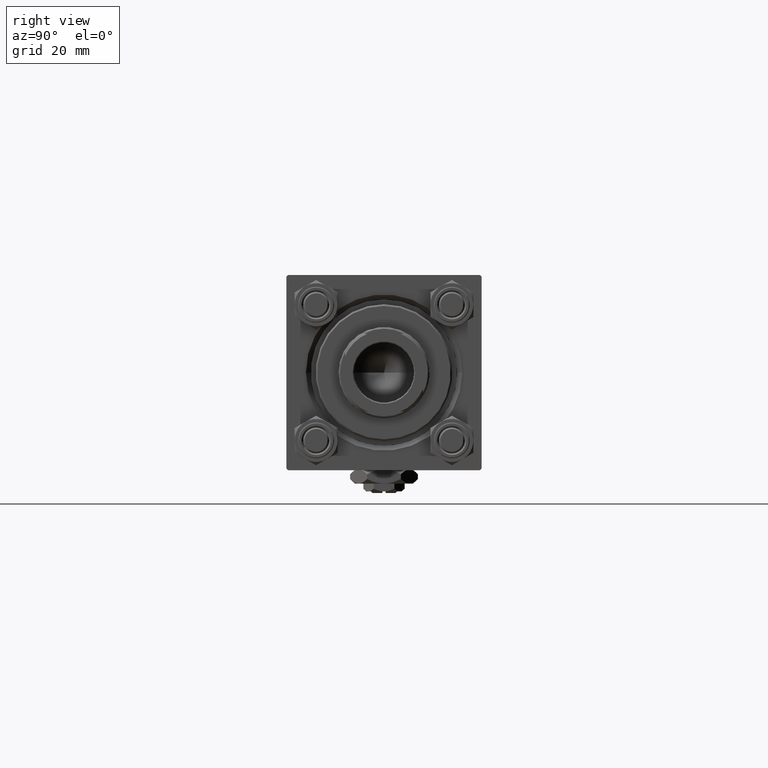
[diagram: clean part render]
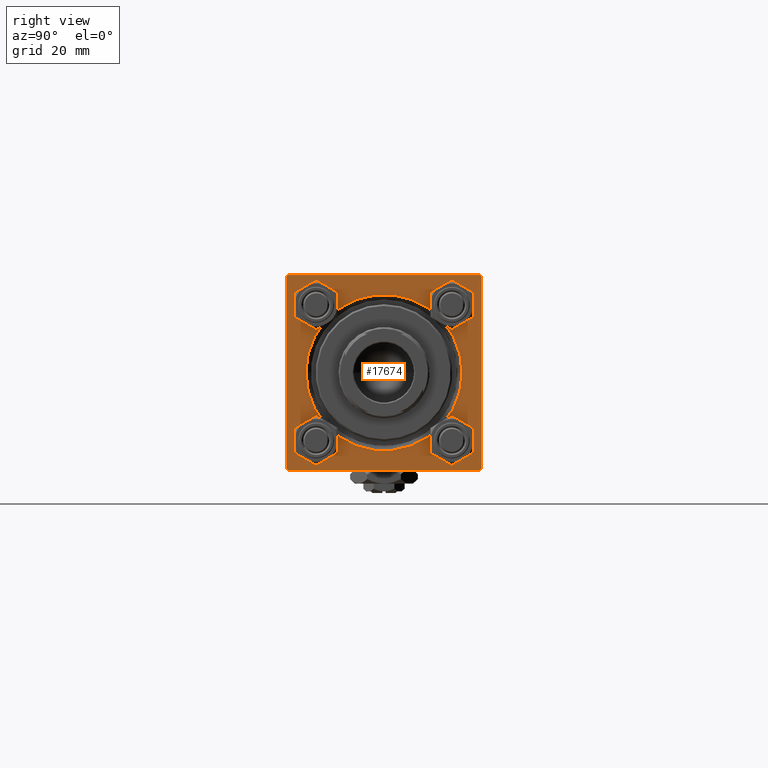
[diagram: same view with one face highlighted and labeled with its STEP entity id]
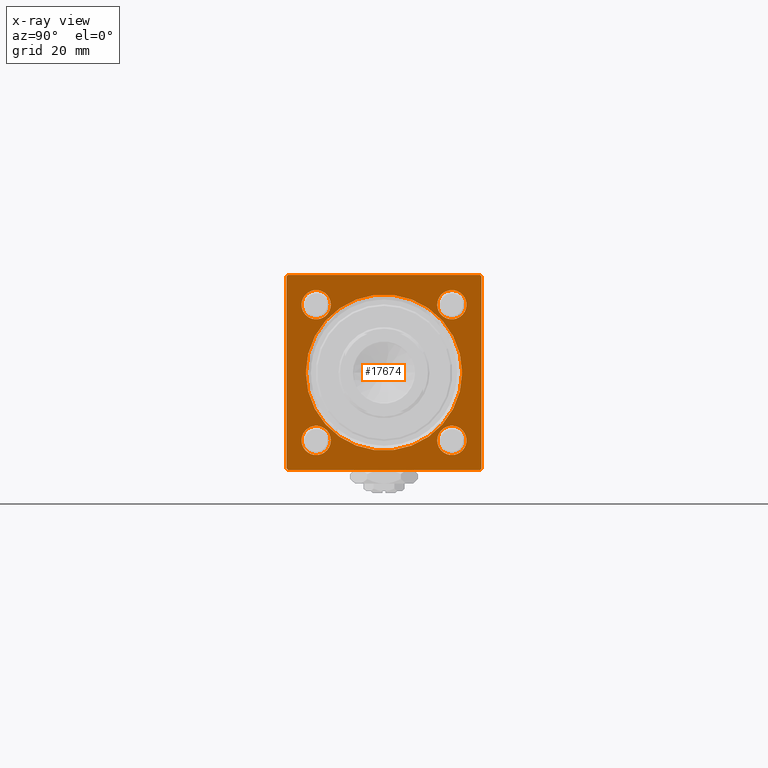
[diagram: x-ray of the same camera — body ghosted, the highlighted face saturated]
A machine part, right view. The second image highlights one B-rep face of the part: STEP entity #17674.
The next image is the same camera in x-ray: the body ghosted, the highlighted face saturated — about 0% of this face is hidden behind the body in this view.
In plain terms, the highlighted planar face has unit normal (-1, 0, -0).
Its self-contained STEP definition (entity closure, byte-faithful):
#567 = CARTESIAN_POINT ( 'NONE',  ( 148.0000000000000000, -20.84999999999999432, 20.85000000000000142 ) ) ;
#1582 = DIRECTION ( 'NONE',  ( 0.000000000000000000, 0.000000000000000000, 1.000000000000000000 ) ) ;
#1682 = ORIENTED_EDGE ( 'NONE', *, *, #6005, .T. ) ;
#1716 = EDGE_CURVE ( 'NONE', #19338, #17026, #22707, .T. ) ;
#1899 = CARTESIAN_POINT ( 'NONE',  ( 148.0000000000000000, 30.00000000000000000, 30.00000000000000000 ) ) ;
#2116 = DIRECTION ( 'NONE',  ( -1.000000000000000000, 0.000000000000000000, -0.000000000000000000 ) ) ;
#2348 = ORIENTED_EDGE ( 'NONE', *, *, #29421, .T. ) ;
#2548 = CARTESIAN_POINT ( 'NONE',  ( 148.0000000000000000, 20.84999999999999787, 16.34999999999998366 ) ) ;
#2981 = DIRECTION ( 'NONE',  ( 0.000000000000000000, 0.000000000000000000, 1.000000000000000000 ) ) ;
#3104 = ORIENTED_EDGE ( 'NONE', *, *, #33007, .T. ) ;
#3462 = DIRECTION ( 'NONE',  ( 0.000000000000000000, 0.000000000000000000, 1.000000000000000000 ) ) ;
#3600 = CARTESIAN_POINT ( 'NONE',  ( 148.0000000000000000, 30.00000000000000000, -29.49999999999997868 ) ) ;
#3831 = VECTOR ( 'NONE', #29230, 1000.000000000000114 ) ;
#4316 = EDGE_CURVE ( 'NONE', #24863, #12214, #6911, .T. ) ;
#4486 = AXIS2_PLACEMENT_3D ( 'NONE', #49202, #32586, #36747 ) ;
#4993 = LINE ( 'NONE', #44536, #29805 ) ;
#5298 = ORIENTED_EDGE ( 'NONE', *, *, #50554, .T. ) ;
#5402 = DIRECTION ( 'NONE',  ( 0.000000000000000000, -1.000000000000000000, -1.156482317317871478E-16 ) ) ;
#6005 = EDGE_CURVE ( 'NONE', #26243, #27381, #34446, .T. ) ;
#6911 = CIRCLE ( 'NONE', #48467, 4.500000000000017764 ) ;
#6924 = DIRECTION ( 'NONE',  ( -1.000000000000000000, 0.000000000000000000, -0.000000000000000000 ) ) ;
#7304 = CARTESIAN_POINT ( 'NONE',  ( 148.0000000000000000, -30.00000000000000000, 29.99999999999999289 ) ) ;
#7624 = CARTESIAN_POINT ( 'NONE',  ( 148.0000000000000000, 29.50000000000000000, 30.00000000000000000 ) ) ;
#7799 = VERTEX_POINT ( 'NONE', #27615 ) ;
#7859 = DIRECTION ( 'NONE',  ( 0.000000000000000000, 0.7071067811865474617, -0.7071067811865474617 ) ) ;
#8165 = PLANE ( 'NONE',  #13107 ) ;
#8195 = AXIS2_PLACEMENT_3D ( 'NONE', #567, #40640, #1582 ) ;
#8772 = CARTESIAN_POINT ( 'NONE',  ( 148.0000000000000000, 0.000000000000000000, 0.000000000000000000 ) ) ;
#8821 = AXIS2_PLACEMENT_3D ( 'NONE', #18579, #14181, #2981 ) ;
#9278 = CARTESIAN_POINT ( 'NONE',  ( 148.0000000000000000, -30.00000000000000000, -29.49999999999998579 ) ) ;
#9408 = CARTESIAN_POINT ( 'NONE',  ( 148.0000000000000000, 29.50000000000000000, 30.00000000000000000 ) ) ;
#9668 = DIRECTION ( 'NONE',  ( 0.000000000000000000, -1.000000000000000000, -1.156482317317871478E-16 ) ) ;
#9704 = VERTEX_POINT ( 'NONE', #31792 ) ;
#9825 = CARTESIAN_POINT ( 'NONE',  ( 148.0000000000000000, 30.00000000000000000, 30.00000000000000000 ) ) ;
#9976 = CIRCLE ( 'NONE', #26626, 4.500000000000017764 ) ;
#12047 = FACE_BOUND ( 'NONE', #18912, .T. ) ;
#12214 = VERTEX_POINT ( 'NONE', #20029 ) ;
#12478 = VERTEX_POINT ( 'NONE', #2548 ) ;
#13058 = CARTESIAN_POINT ( 'NONE',  ( 148.0000000000000000, 30.00000000000000000, 29.50000000000000000 ) ) ;
#13066 = CARTESIAN_POINT ( 'NONE',  ( 148.0000000000000000, 2.939152317953652628E-15, 24.00000000000003908 ) ) ;
#13107 = AXIS2_PLACEMENT_3D ( 'NONE', #46470, #6924, #35493 ) ;
#13454 = VERTEX_POINT ( 'NONE', #26236 ) ;
#13527 = CIRCLE ( 'NONE', #17657, 4.500000000000017764 ) ;
#13713 = LINE ( 'NONE', #9825, #22046 ) ;
#14181 = DIRECTION ( 'NONE',  ( -1.000000000000000000, 0.000000000000000000, -0.000000000000000000 ) ) ;
#14721 = FACE_OUTER_BOUND ( 'NONE', #43139, .T. ) ;
#14896 = ORIENTED_EDGE ( 'NONE', *, *, #25797, .T. ) ;
#15087 = LINE ( 'NONE', #7304, #19067 ) ;
#15119 = ORIENTED_EDGE ( 'NONE', *, *, #16082, .T. ) ;
#15196 = VERTEX_POINT ( 'NONE', #3600 ) ;
#15417 = CARTESIAN_POINT ( 'NONE',  ( 148.0000000000000000, 20.84999999999999787, -20.85000000000000142 ) ) ;
#15910 = LINE ( 'NONE', #47393, #28278 ) ;
#15946 = FACE_BOUND ( 'NONE', #37173, .T. ) ;
#16082 = EDGE_CURVE ( 'NONE', #48392, #15196, #22094, .T. ) ;
#16152 = ORIENTED_EDGE ( 'NONE', *, *, #45951, .T. ) ;
#17026 = VERTEX_POINT ( 'NONE', #9408 ) ;
#17266 = LINE ( 'NONE', #1899, #51299 ) ;
#17657 = AXIS2_PLACEMENT_3D ( 'NONE', #15417, #35488, #3462 ) ;
#17674 = ADVANCED_FACE ( 'NONE', ( #22783, #12047, #48203, #15946, #19586, #14721 ), #8165, .F. ) ;
#17901 = ORIENTED_EDGE ( 'NONE', *, *, #34590, .F. ) ;
#18434 = CARTESIAN_POINT ( 'NONE',  ( 148.0000000000000000, 30.00000000000000000, -29.49999999999999289 ) ) ;
#18579 = CARTESIAN_POINT ( 'NONE',  ( 148.0000000000000000, -20.85000000000000142, -20.85000000000000142 ) ) ;
#18912 = EDGE_LOOP ( 'NONE', ( #23134, #19590 ) ) ;
#19067 = VECTOR ( 'NONE', #31500, 1000.000000000000000 ) ;
#19338 = VERTEX_POINT ( 'NONE', #13058 ) ;
#19449 = CARTESIAN_POINT ( 'NONE',  ( 148.0000000000000000, 20.84999999999999787, -25.35000000000001918 ) ) ;
#19586 = FACE_BOUND ( 'NONE', #25998, .T. ) ;
#19590 = ORIENTED_EDGE ( 'NONE', *, *, #20420, .T. ) ;
#20029 = CARTESIAN_POINT ( 'NONE',  ( 148.0000000000000000, 20.84999999999999787, -16.34999999999998366 ) ) ;
#20319 = DIRECTION ( 'NONE',  ( -1.000000000000000000, 0.000000000000000000, -0.000000000000000000 ) ) ;
#20420 = EDGE_CURVE ( 'NONE', #12214, #24863, #13527, .T. ) ;
#20896 = ORIENTED_EDGE ( 'NONE', *, *, #41622, .T. ) ;
#21096 = VECTOR ( 'NONE', #38584, 1000.000000000000114 ) ;
#22046 = VECTOR ( 'NONE', #5402, 1000.000000000000000 ) ;
#22094 = LINE ( 'NONE', #18434, #32300 ) ;
#22707 = LINE ( 'NONE', #7624, #21096 ) ;
#22783 = FACE_BOUND ( 'NONE', #51090, .T. ) ;
#23134 = ORIENTED_EDGE ( 'NONE', *, *, #4316, .T. ) ;
#23855 = CARTESIAN_POINT ( 'NONE',  ( 148.0000000000000000, -29.50000000000000000, 29.99999999999999289 ) ) ;
#24863 = VERTEX_POINT ( 'NONE', #19449 ) ;
#25298 = DIRECTION ( 'NONE',  ( 0.000000000000000000, 0.000000000000000000, 1.000000000000000000 ) ) ;
#25797 = EDGE_CURVE ( 'NONE', #12478, #40439, #31995, .T. ) ;
#25987 = CARTESIAN_POINT ( 'NONE',  ( 148.0000000000000000, 20.84999999999999787, 25.35000000000001918 ) ) ;
#25998 = EDGE_LOOP ( 'NONE', ( #47303, #3104 ) ) ;
#26056 = CARTESIAN_POINT ( 'NONE',  ( 148.0000000000000000, 20.84999999999999787, 20.85000000000000142 ) ) ;
#26236 = CARTESIAN_POINT ( 'NONE',  ( 148.0000000000000000, -20.84999999999999432, 25.35000000000001918 ) ) ;
#26243 = VERTEX_POINT ( 'NONE', #33197 ) ;
#26399 = ORIENTED_EDGE ( 'NONE', *, *, #28310, .T. ) ;
#26626 = AXIS2_PLACEMENT_3D ( 'NONE', #32316, #20319, #36722 ) ;
#26967 = CARTESIAN_POINT ( 'NONE',  ( 148.0000000000000000, 20.84999999999999787, -20.85000000000000142 ) ) ;
#27242 = EDGE_CURVE ( 'NONE', #17026, #27757, #13713, .T. ) ;
#27381 = VERTEX_POINT ( 'NONE', #51159 ) ;
#27615 = CARTESIAN_POINT ( 'NONE',  ( 148.0000000000000000, 0.000000000000000000, -24.00000000000003908 ) ) ;
#27757 = VERTEX_POINT ( 'NONE', #23855 ) ;
#28185 = CARTESIAN_POINT ( 'NONE',  ( 148.0000000000000000, -30.00000000000000000, 29.49999999999999289 ) ) ;
#28278 = VECTOR ( 'NONE', #7859, 1000.000000000000114 ) ;
#28310 = EDGE_CURVE ( 'NONE', #27757, #34922, #38315, .T. ) ;
#28522 = ORIENTED_EDGE ( 'NONE', *, *, #1716, .T. ) ;
#28931 = CARTESIAN_POINT ( 'NONE',  ( 148.0000000000000000, 0.000000000000000000, 0.000000000000000000 ) ) ;
#29230 = DIRECTION ( 'NONE',  ( -0.000000000000000000, -0.7071067811865474617, -0.7071067811865474617 ) ) ;
#29255 = DIRECTION ( 'NONE',  ( 0.000000000000000000, 0.000000000000000000, -1.000000000000000000 ) ) ;
#29310 = CARTESIAN_POINT ( 'NONE',  ( 148.0000000000000000, 29.50000000000000000, -29.99999999999999289 ) ) ;
#29421 = EDGE_CURVE ( 'NONE', #40439, #12478, #37926, .T. ) ;
#29805 = VECTOR ( 'NONE', #9668, 1000.000000000000000 ) ;
#30000 = VERTEX_POINT ( 'NONE', #9278 ) ;
#30197 = DIRECTION ( 'NONE',  ( 0.000000000000000000, 0.000000000000000000, 1.000000000000000000 ) ) ;
#30427 = AXIS2_PLACEMENT_3D ( 'NONE', #28931, #40634, #44779 ) ;
#31125 = ORIENTED_EDGE ( 'NONE', *, *, #37593, .T. ) ;
#31138 = CIRCLE ( 'NONE', #8821, 4.500000000000017764 ) ;
#31500 = DIRECTION ( 'NONE',  ( 0.000000000000000000, 0.000000000000000000, -1.000000000000000000 ) ) ;
#31792 = CARTESIAN_POINT ( 'NONE',  ( 148.0000000000000000, -20.84999999999999432, 16.34999999999998366 ) ) ;
#31995 = CIRCLE ( 'NONE', #46936, 4.500000000000017764 ) ;
#32300 = VECTOR ( 'NONE', #49172, 1000.000000000000114 ) ;
#32316 = CARTESIAN_POINT ( 'NONE',  ( 148.0000000000000000, -20.84999999999999432, 20.85000000000000142 ) ) ;
#32328 = CARTESIAN_POINT ( 'NONE',  ( 148.0000000000000000, -29.50000000000000000, -30.00000000000000000 ) ) ;
#32586 = DIRECTION ( 'NONE',  ( -1.000000000000000000, 0.000000000000000000, -0.000000000000000000 ) ) ;
#33007 = EDGE_CURVE ( 'NONE', #38624, #7799, #41231, .T. ) ;
#33197 = CARTESIAN_POINT ( 'NONE',  ( 148.0000000000000000, -20.85000000000000142, -16.34999999999998366 ) ) ;
#33497 = ORIENTED_EDGE ( 'NONE', *, *, #38554, .F. ) ;
#33851 = EDGE_LOOP ( 'NONE', ( #14896, #2348 ) ) ;
#34071 = AXIS2_PLACEMENT_3D ( 'NONE', #8772, #40258, #35618 ) ;
#34120 = CARTESIAN_POINT ( 'NONE',  ( 148.0000000000000000, 20.84999999999999787, 20.85000000000000142 ) ) ;
#34446 = CIRCLE ( 'NONE', #4486, 4.500000000000017764 ) ;
#34590 = EDGE_CURVE ( 'NONE', #19338, #15196, #17266, .T. ) ;
#34922 = VERTEX_POINT ( 'NONE', #28185 ) ;
#35488 = DIRECTION ( 'NONE',  ( -1.000000000000000000, 0.000000000000000000, -0.000000000000000000 ) ) ;
#35493 = DIRECTION ( 'NONE',  ( -0.000000000000000000, 0.000000000000000000, 1.000000000000000000 ) ) ;
#35618 = DIRECTION ( 'NONE',  ( 0.000000000000000000, 0.000000000000000000, 1.000000000000000000 ) ) ;
#36155 = ORIENTED_EDGE ( 'NONE', *, *, #27242, .T. ) ;
#36722 = DIRECTION ( 'NONE',  ( 0.000000000000000000, 0.000000000000000000, 1.000000000000000000 ) ) ;
#36747 = DIRECTION ( 'NONE',  ( 0.000000000000000000, 0.000000000000000000, 1.000000000000000000 ) ) ;
#37173 = EDGE_LOOP ( 'NONE', ( #31125, #39725 ) ) ;
#37593 = EDGE_CURVE ( 'NONE', #9704, #13454, #46389, .T. ) ;
#37926 = CIRCLE ( 'NONE', #46245, 4.500000000000017764 ) ;
#38315 = LINE ( 'NONE', #45602, #3831 ) ;
#38554 = EDGE_CURVE ( 'NONE', #48392, #46968, #4993, .T. ) ;
#38584 = DIRECTION ( 'NONE',  ( 0.000000000000000000, -0.7071067811865474617, 0.7071067811865474617 ) ) ;
#38624 = VERTEX_POINT ( 'NONE', #13066 ) ;
#39725 = ORIENTED_EDGE ( 'NONE', *, *, #46010, .T. ) ;
#40258 = DIRECTION ( 'NONE',  ( -1.000000000000000000, 0.000000000000000000, -0.000000000000000000 ) ) ;
#40439 = VERTEX_POINT ( 'NONE', #25987 ) ;
#40634 = DIRECTION ( 'NONE',  ( -1.000000000000000000, 0.000000000000000000, -0.000000000000000000 ) ) ;
#40640 = DIRECTION ( 'NONE',  ( -1.000000000000000000, 0.000000000000000000, -0.000000000000000000 ) ) ;
#41231 = CIRCLE ( 'NONE', #30427, 24.00000000000003908 ) ;
#41622 = EDGE_CURVE ( 'NONE', #34922, #30000, #15087, .T. ) ;
#42070 = EDGE_CURVE ( 'NONE', #7799, #38624, #49010, .T. ) ;
#43139 = EDGE_LOOP ( 'NONE', ( #20896, #16152, #33497, #15119, #17901, #28522, #36155, #26399 ) ) ;
#44536 = CARTESIAN_POINT ( 'NONE',  ( 148.0000000000000000, 30.00000000000000000, -29.99999999999999289 ) ) ;
#44779 = DIRECTION ( 'NONE',  ( 0.000000000000000000, 0.000000000000000000, 1.000000000000000000 ) ) ;
#45602 = CARTESIAN_POINT ( 'NONE',  ( 148.0000000000000000, -30.00000000000000000, 29.49999999999999289 ) ) ;
#45951 = EDGE_CURVE ( 'NONE', #30000, #46968, #15910, .T. ) ;
#46010 = EDGE_CURVE ( 'NONE', #13454, #9704, #9976, .T. ) ;
#46229 = DIRECTION ( 'NONE',  ( 0.000000000000000000, 0.000000000000000000, 1.000000000000000000 ) ) ;
#46245 = AXIS2_PLACEMENT_3D ( 'NONE', #34120, #49963, #30197 ) ;
#46389 = CIRCLE ( 'NONE', #8195, 4.500000000000017764 ) ;
#46470 = CARTESIAN_POINT ( 'NONE',  ( 148.0000000000000000, 0.000000000000000000, 0.000000000000000000 ) ) ;
#46936 = AXIS2_PLACEMENT_3D ( 'NONE', #26056, #2116, #25298 ) ;
#46968 = VERTEX_POINT ( 'NONE', #32328 ) ;
#47303 = ORIENTED_EDGE ( 'NONE', *, *, #42070, .T. ) ;
#47393 = CARTESIAN_POINT ( 'NONE',  ( 148.0000000000000000, -29.50000000000000000, -30.00000000000000000 ) ) ;
#48203 = FACE_BOUND ( 'NONE', #33851, .T. ) ;
#48392 = VERTEX_POINT ( 'NONE', #29310 ) ;
#48467 = AXIS2_PLACEMENT_3D ( 'NONE', #26967, #49615, #46229 ) ;
#49010 = CIRCLE ( 'NONE', #34071, 24.00000000000003908 ) ;
#49172 = DIRECTION ( 'NONE',  ( -0.000000000000000000, 0.7071067811865474617, 0.7071067811865474617 ) ) ;
#49202 = CARTESIAN_POINT ( 'NONE',  ( 148.0000000000000000, -20.85000000000000142, -20.85000000000000142 ) ) ;
#49615 = DIRECTION ( 'NONE',  ( -1.000000000000000000, 0.000000000000000000, -0.000000000000000000 ) ) ;
#49963 = DIRECTION ( 'NONE',  ( -1.000000000000000000, 0.000000000000000000, -0.000000000000000000 ) ) ;
#50554 = EDGE_CURVE ( 'NONE', #27381, #26243, #31138, .T. ) ;
#51090 = EDGE_LOOP ( 'NONE', ( #5298, #1682 ) ) ;
#51159 = CARTESIAN_POINT ( 'NONE',  ( 148.0000000000000000, -20.85000000000000142, -25.35000000000001918 ) ) ;
#51299 = VECTOR ( 'NONE', #29255, 1000.000000000000000 ) ;